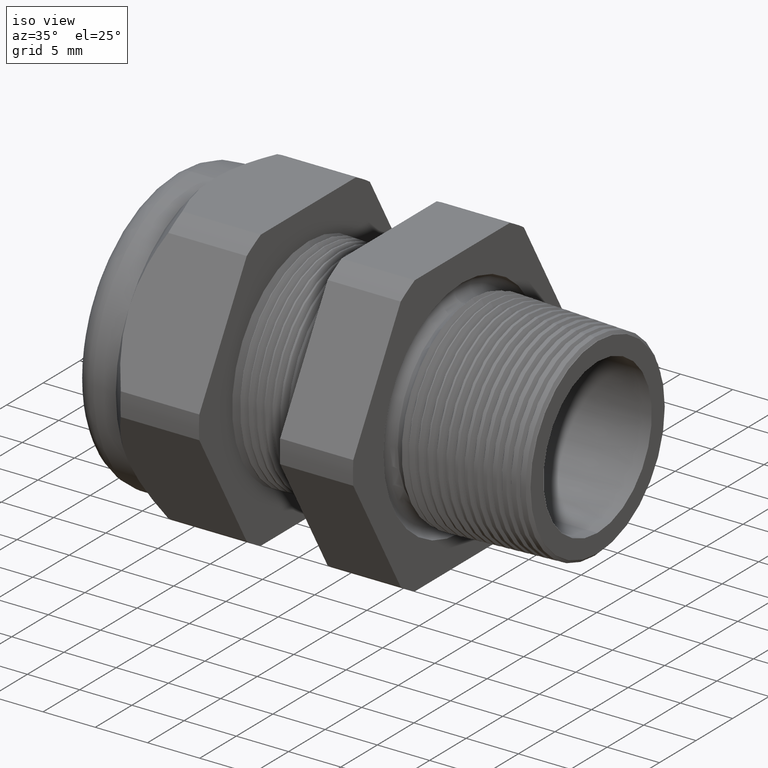
[diagram: clean part render]
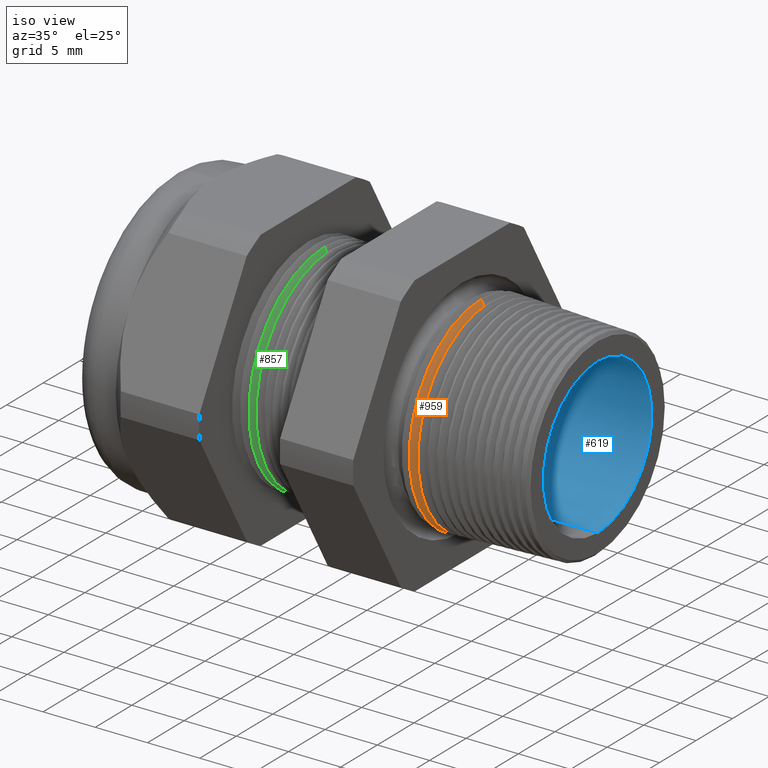
[diagram: same view with three faces highlighted in distinct colors, each labeled with its STEP entity id]
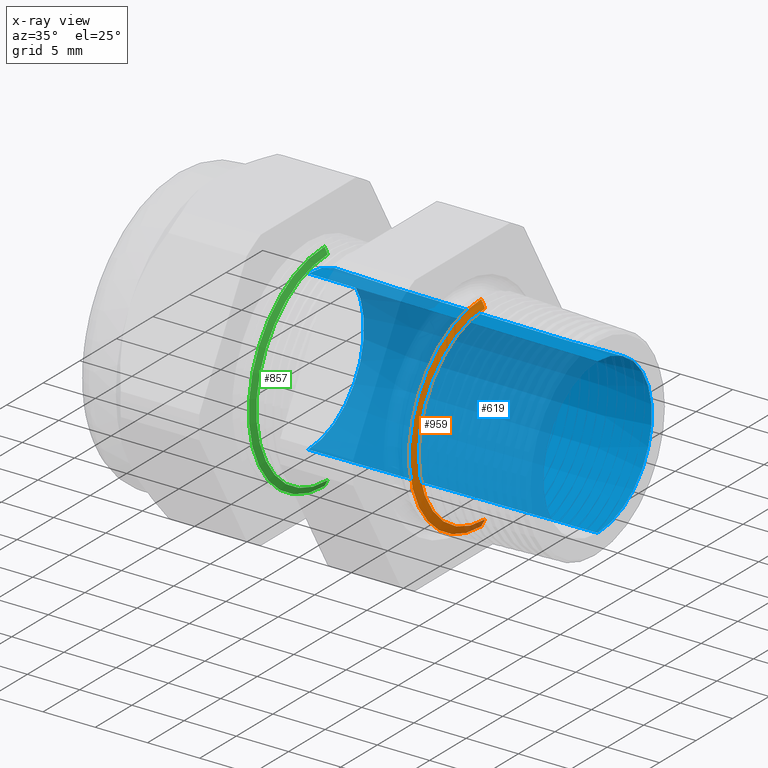
[diagram: x-ray of the same camera — body ghosted, the three highlighted faces saturated]
A machine part, iso view with three faces highlighted in distinct colors.
The next image is the same camera in x-ray (body ghosted, the three faces saturated) — at least one of them is partly hidden behind the body in this view.
Their STEP definitions:

[orange] entity #959 — the highlighted conical surface has half-angle 62 deg.
#959 = ADVANCED_FACE ( 'NONE', ( #2848 ), #2847, .T. ) ;
#960 = EDGE_LOOP ( 'NONE', ( #961, #962, #964, #965 ) ) ;
#961 = ORIENTED_EDGE ( 'NONE', *, *, #4969, .F. ) ;
#962 = ORIENTED_EDGE ( 'NONE', *, *, #963, .F. ) ;
#963 = EDGE_CURVE ( 'NONE', #4955, #5001, #2841, .T. ) ;
#964 = ORIENTED_EDGE ( 'NONE', *, *, #5014, .T. ) ;
#965 = ORIENTED_EDGE ( 'NONE', *, *, #5288, .T. ) ;
#2838 = DIRECTION ( 'NONE',  ( 0.0000000000000000000, 0.0000000000000000000, -1.000000000000000000 ) ) ;
#2839 = DIRECTION ( 'NONE',  ( 1.000000000000000000, 0.0000000000000000000, 0.0000000000000000000 ) ) ;
#2840 = AXIS2_PLACEMENT_3D ( 'NONE', #2846, #2839, #2838 ) ;
#2841 = CIRCLE ( 'NONE', #2840, 0.3591487532021881400 ) ;
#2842 = DIRECTION ( 'NONE',  ( 0.0000000000000000000, 0.0000000000000000000, 1.000000000000000000 ) ) ;
#2843 = DIRECTION ( 'NONE',  ( -1.000000000000000000, 0.0000000000000000000, 0.0000000000000000000 ) ) ;
#2844 = CARTESIAN_POINT ( 'NONE',  ( -0.2399999999999998200, 0.0000000000000000000, 0.0000000000000000000 ) ) ;
#2845 = AXIS2_PLACEMENT_3D ( 'NONE', #2844, #2843, #2842 ) ;
#2846 = CARTESIAN_POINT ( 'NONE',  ( -0.2237370280109209100, 0.0000000000000000000, 0.0000000000000000000 ) ) ;
#2847 = CONICAL_SURFACE ( 'NONE', #2845, 0.3897349550272340400, 1.082104136236471400 ) ;
#2848 = FACE_OUTER_BOUND ( 'NONE', #960, .T. ) ;
#3366 = DIRECTION ( 'NONE',  ( -0.4694715627859021900, 1.081298943409537900E-016, -0.8829475928589208800 ) ) ;
#3367 = VECTOR ( 'NONE', #3366, 39.37007874015748100 ) ;
#3368 = CARTESIAN_POINT ( 'NONE',  ( -0.2399999999999998200, 4.772876651899397700E-017, -0.3897349550272340400 ) ) ;
#3369 = LINE ( 'NONE', #3368, #3367 ) ;
#3370 = CARTESIAN_POINT ( 'NONE',  ( -0.2386756710796201800, 4.742898640256805200E-017, -0.3872442545778525500 ) ) ;
#3382 = CARTESIAN_POINT ( 'NONE',  ( -0.2386756710796201800, 0.0000000000000000000, 0.3872442545778525500 ) ) ;
#3392 = CARTESIAN_POINT ( 'NONE',  ( -0.2237370280109209100, 0.0000000000000000000, 0.3591487532021881400 ) ) ;
#3428 = CARTESIAN_POINT ( 'NONE',  ( -0.2237370280109209100, 4.570339039418961700E-017, -0.3591487532021881400 ) ) ;
#3458 = DIRECTION ( 'NONE',  ( -0.4694715627859021900, 0.0000000000000000000, 0.8829475928589208800 ) ) ;
#3459 = VECTOR ( 'NONE', #3458, 39.37007874015748100 ) ;
#3460 = CARTESIAN_POINT ( 'NONE',  ( -0.2399999999999998200, 0.0000000000000000000, 0.3897349550272340400 ) ) ;
#3465 = LINE ( 'NONE', #3460, #3459 ) ;
#4010 = DIRECTION ( 'NONE',  ( 0.0000000000000000000, 0.0000000000000000000, 1.000000000000000000 ) ) ;
#4011 = DIRECTION ( 'NONE',  ( 1.000000000000000000, 0.0000000000000000000, 0.0000000000000000000 ) ) ;
#4012 = CARTESIAN_POINT ( 'NONE',  ( -0.2386756710796201800, 0.0000000000000000000, 0.0000000000000000000 ) ) ;
#4013 = AXIS2_PLACEMENT_3D ( 'NONE', #4012, #4011, #4010 ) ;
#4014 = CIRCLE ( 'NONE', #4013, 0.3872442545778525500 ) ;
#4955 = VERTEX_POINT ( 'NONE', #3392 ) ;
#4961 = VERTEX_POINT ( 'NONE', #3382 ) ;
#4967 = VERTEX_POINT ( 'NONE', #3370 ) ;
#4969 = EDGE_CURVE ( 'NONE', #5001, #4967, #3369, .T. ) ;
#5001 = VERTEX_POINT ( 'NONE', #3428 ) ;
#5014 = EDGE_CURVE ( 'NONE', #4955, #4961, #3465, .T. ) ;
#5288 = EDGE_CURVE ( 'NONE', #4961, #4967, #4014, .T. ) ;

[blue] entity #619 — the highlighted conical surface has half-angle 0.424 deg.
#24 = VERTEX_POINT ( 'NONE', #1204 ) ;
#53 = VERTEX_POINT ( 'NONE', #1274 ) ;
#67 = EDGE_CURVE ( 'NONE', #24, #53, #1316, .T. ) ;
#72 = VERTEX_POINT ( 'NONE', #1306 ) ;
#334 = EDGE_CURVE ( 'NONE', #350, #72, #1785, .T. ) ;
#350 = VERTEX_POINT ( 'NONE', #1816 ) ;
#618 = EDGE_CURVE ( 'NONE', #72, #53, #2340, .T. ) ;
#619 = ADVANCED_FACE ( 'NONE', ( #2335 ), #2334, .F. ) ;
#620 = EDGE_LOOP ( 'NONE', ( #621, #622, #624, #625 ) ) ;
#621 = ORIENTED_EDGE ( 'NONE', *, *, #334, .F. ) ;
#622 = ORIENTED_EDGE ( 'NONE', *, *, #623, .T. ) ;
#623 = EDGE_CURVE ( 'NONE', #350, #24, #2396, .T. ) ;
#624 = ORIENTED_EDGE ( 'NONE', *, *, #67, .T. ) ;
#625 = ORIENTED_EDGE ( 'NONE', *, *, #618, .F. ) ;
#1204 = CARTESIAN_POINT ( 'NONE',  ( 0.2000000000000000400, 0.0000000000000000000, 0.2919253625864464100 ) ) ;
#1274 = CARTESIAN_POINT ( 'NONE',  ( -0.8903149606299211000, 3.673940397442058900E-017, 0.2999999999999999900 ) ) ;
#1306 = CARTESIAN_POINT ( 'NONE',  ( -0.8903149606299211000, 0.0000000000000000000, -0.2999999999999999900 ) ) ;
#1313 = DIRECTION ( 'NONE',  ( -0.9999725783074426800, 0.0000000000000000000, 0.007405581217251161100 ) ) ;
#1314 = VECTOR ( 'NONE', #1313, 39.37007874015748900 ) ;
#1315 = CARTESIAN_POINT ( 'NONE',  ( -0.8903149606299211000, 0.0000000000000000000, 0.2999999999999999900 ) ) ;
#1316 = LINE ( 'NONE', #1315, #1314 ) ;
#1782 = DIRECTION ( 'NONE',  ( -0.9999725783074426800, 9.069221333532394100E-019, -0.007405581217251161100 ) ) ;
#1783 = VECTOR ( 'NONE', #1782, 39.37007874015748900 ) ;
#1784 = CARTESIAN_POINT ( 'NONE',  ( -0.8903149606299211000, 3.673940397442058900E-017, -0.2999999999999999900 ) ) ;
#1785 = LINE ( 'NONE', #1784, #1783 ) ;
#1816 = CARTESIAN_POINT ( 'NONE',  ( 0.2000000000000000400, 3.624497503128140000E-017, -0.2919253625864464100 ) ) ;
#2332 = CARTESIAN_POINT ( 'NONE',  ( -0.8903149606299211000, 0.0000000000000000000, 0.0000000000000000000 ) ) ;
#2333 = AXIS2_PLACEMENT_3D ( 'NONE', #2332, #2395, #2394 ) ;
#2334 = CONICAL_SURFACE ( 'NONE', #2333, 0.2999999999999999900, 0.007405648909184102100 ) ;
#2335 = FACE_OUTER_BOUND ( 'NONE', #620, .T. ) ;
#2336 = DIRECTION ( 'NONE',  ( 0.0000000000000000000, 0.0000000000000000000, -1.000000000000000000 ) ) ;
#2337 = DIRECTION ( 'NONE',  ( 1.000000000000000000, 0.0000000000000000000, 0.0000000000000000000 ) ) ;
#2338 = CARTESIAN_POINT ( 'NONE',  ( -0.8903149606299211000, 0.0000000000000000000, 0.0000000000000000000 ) ) ;
#2339 = AXIS2_PLACEMENT_3D ( 'NONE', #2338, #2337, #2336 ) ;
#2340 = CIRCLE ( 'NONE', #2339, 0.2999999999999999900 ) ;
#2390 = DIRECTION ( 'NONE',  ( 0.0000000000000000000, 0.0000000000000000000, -1.000000000000000000 ) ) ;
#2391 = DIRECTION ( 'NONE',  ( 1.000000000000000000, 0.0000000000000000000, 0.0000000000000000000 ) ) ;
#2392 = CARTESIAN_POINT ( 'NONE',  ( 0.2000000000000000400, 0.0000000000000000000, 0.0000000000000000000 ) ) ;
#2393 = AXIS2_PLACEMENT_3D ( 'NONE', #2392, #2391, #2390 ) ;
#2394 = DIRECTION ( 'NONE',  ( 0.0000000000000000000, 0.0000000000000000000, 1.000000000000000000 ) ) ;
#2395 = DIRECTION ( 'NONE',  ( -1.000000000000000000, 0.0000000000000000000, 0.0000000000000000000 ) ) ;
#2396 = CIRCLE ( 'NONE', #2393, 0.2919253625864464100 ) ;

[green] entity #857 — the highlighted conical surface has half-angle 62 deg.
#411 = VERTEX_POINT ( 'NONE', #1961 ) ;
#415 = VERTEX_POINT ( 'NONE', #1955 ) ;
#837 = ORIENTED_EDGE ( 'NONE', *, *, #5479, .T. ) ;
#838 = ORIENTED_EDGE ( 'NONE', *, *, #5383, .T. ) ;
#857 = ADVANCED_FACE ( 'NONE', ( #2661 ), #2660, .T. ) ;
#858 = EDGE_LOOP ( 'NONE', ( #859, #860, #837, #838 ) ) ;
#859 = ORIENTED_EDGE ( 'NONE', *, *, #5455, .F. ) ;
#860 = ORIENTED_EDGE ( 'NONE', *, *, #861, .F. ) ;
#861 = EDGE_CURVE ( 'NONE', #411, #415, #2721, .T. ) ;
#1955 = CARTESIAN_POINT ( 'NONE',  ( -0.8167624839723552900, 4.851907410349857800E-017, -0.3845114984791283600 ) ) ;
#1961 = CARTESIAN_POINT ( 'NONE',  ( -0.8167624839723552900, 0.0000000000000000000, 0.3845114984791283600 ) ) ;
#2657 = DIRECTION ( 'NONE',  ( 0.0000000000000000000, 0.0000000000000000000, 1.000000000000000000 ) ) ;
#2658 = DIRECTION ( 'NONE',  ( -1.000000000000000000, 0.0000000000000000000, 0.0000000000000000000 ) ) ;
#2659 = AXIS2_PLACEMENT_3D ( 'NONE', #2665, #2658, #2657 ) ;
#2660 = CONICAL_SURFACE ( 'NONE', #2659, 0.4099999999999999800, 1.082104136236472500 ) ;
#2661 = FACE_OUTER_BOUND ( 'NONE', #858, .T. ) ;
#2665 = CARTESIAN_POINT ( 'NONE',  ( -0.8303149606299210500, 0.0000000000000000000, 0.0000000000000000000 ) ) ;
#2717 = DIRECTION ( 'NONE',  ( 0.0000000000000000000, 0.0000000000000000000, -1.000000000000000000 ) ) ;
#2718 = DIRECTION ( 'NONE',  ( 1.000000000000000000, 0.0000000000000000000, 0.0000000000000000000 ) ) ;
#2719 = CARTESIAN_POINT ( 'NONE',  ( -0.8167624839723552900, 0.0000000000000000000, 0.0000000000000000000 ) ) ;
#2720 = AXIS2_PLACEMENT_3D ( 'NONE', #2719, #2718, #2717 ) ;
#2721 = CIRCLE ( 'NONE', #2720, 0.3845114984791283600 ) ;
#4239 = DIRECTION ( 'NONE',  ( 0.0000000000000000000, 0.0000000000000000000, 1.000000000000000000 ) ) ;
#4240 = DIRECTION ( 'NONE',  ( 1.000000000000000000, 0.0000000000000000000, 0.0000000000000000000 ) ) ;
#4241 = CARTESIAN_POINT ( 'NONE',  ( -0.8291798215553098900, 0.0000000000000000000, 0.0000000000000000000 ) ) ;
#4242 = AXIS2_PLACEMENT_3D ( 'NONE', #4241, #4240, #4239 ) ;
#4243 = CIRCLE ( 'NONE', #4242, 0.4078651139005300400 ) ;
#4350 = DIRECTION ( 'NONE',  ( -0.4694715627859013000, 1.081298943409538600E-016, -0.8829475928589214400 ) ) ;
#4351 = VECTOR ( 'NONE', #4350, 39.37007874015748100 ) ;
#4352 = CARTESIAN_POINT ( 'NONE',  ( -0.8303149606299210500, 5.021051876504148100E-017, -0.4099999999999999800 ) ) ;
#4353 = LINE ( 'NONE', #4352, #4351 ) ;
#4354 = CARTESIAN_POINT ( 'NONE',  ( -0.8291798215553098900, 4.995532692915480700E-017, -0.4078651139005300400 ) ) ;
#4361 = CARTESIAN_POINT ( 'NONE',  ( -0.8291798215553098900, 0.0000000000000000000, 0.4078651139005300400 ) ) ;
#4426 = DIRECTION ( 'NONE',  ( -0.4694715627859013000, 0.0000000000000000000, 0.8829475928589214400 ) ) ;
#4427 = VECTOR ( 'NONE', #4426, 39.37007874015748100 ) ;
#4428 = CARTESIAN_POINT ( 'NONE',  ( -0.8303149606299210500, 0.0000000000000000000, 0.4099999999999999800 ) ) ;
#4433 = LINE ( 'NONE', #4428, #4427 ) ;
#5383 = EDGE_CURVE ( 'NONE', #5449, #5454, #4243, .T. ) ;
#5449 = VERTEX_POINT ( 'NONE', #4361 ) ;
#5454 = VERTEX_POINT ( 'NONE', #4354 ) ;
#5455 = EDGE_CURVE ( 'NONE', #415, #5454, #4353, .T. ) ;
#5479 = EDGE_CURVE ( 'NONE', #411, #5449, #4433, .T. ) ;